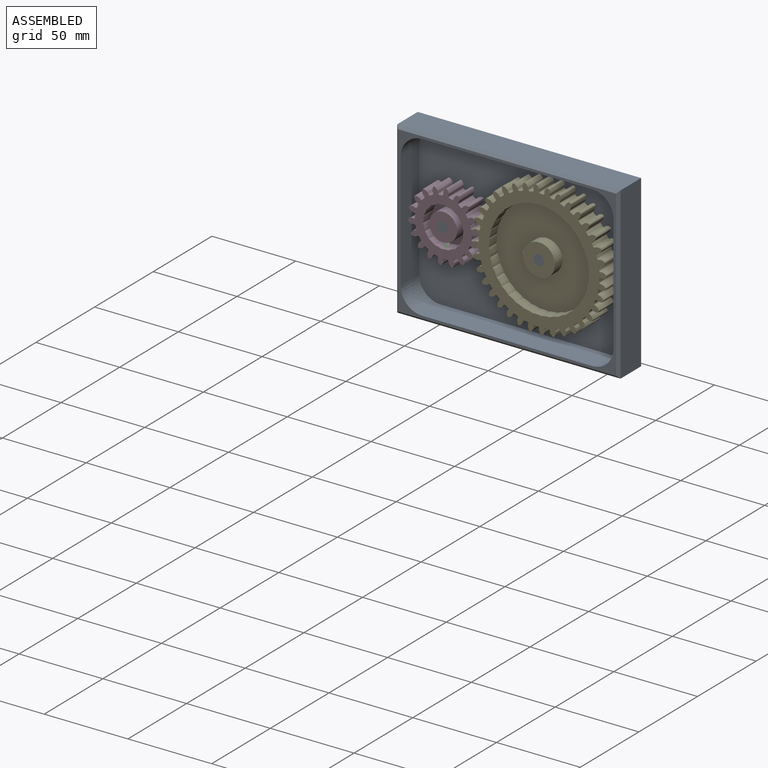
[diagram: assembled view]
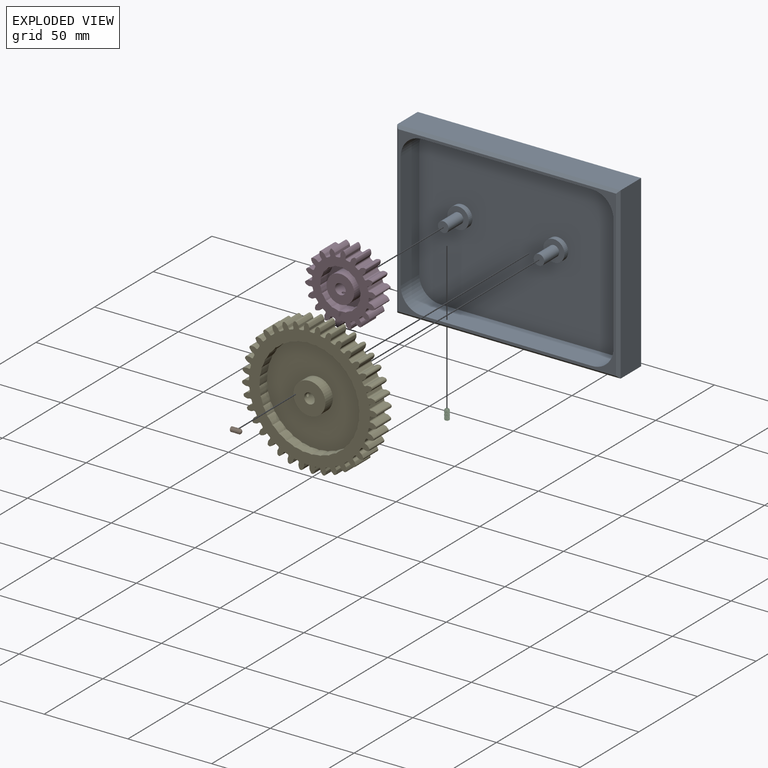
[diagram: exploded view]
GUIDED TOUR — MATED ASSEMBLY (Onshape document 814981c702ebb465fcfaa713, AutoMate assembly 814981c702ebb465fcfaa713_cfed30250e03f2a63d97d763_6ee8edd67da116ce3dcf96ac_default)

This assembly has 5 components, labeled P0..P4 below (a component is one placed occurrence of a part; the same part can appear more than once), held together by 4 mates. A mate is a constraint between two components; its type names the relative motion it leaves free:
  REVOLUTE — leaves rotation about the listed axis free (a hinge).
Axis/direction vectors are unit vectors and 'through' points are millimeter coordinates, both in the assembly's world frame.

MATES
  1. REVOLUTE "Revolute 2": P4 <-> P0, axis (0.000, 1.000, 0.000) through (176.28, -2.98, 43.19) mm
  2. REVOLUTE "Revolute 3": P2 <-> P3, axis (0.000, 0.000, -1.000) through (119.13, -12.50, 37.33) mm
  3. REVOLUTE "Revolute 1": P3 <-> P0, axis (0.000, 1.000, 0.000) through (119.13, -2.98, 45.61) mm
  4. REVOLUTE "Revolute 4": P1 <-> P4, axis (-1.000, 0.000, 0.000) through (170.04, -12.50, 43.19) mm

ASSEMBLY ORDER
  1. P0 — the base component [order heuristic]
  2. P3 — core [order heuristic]
  3. P4 — core [order heuristic]
  4. P2 — core [order heuristic]
  5. P1 [order verified]
(P1 verified with a relaxed clearance tolerance: the source model stores slight part interference there.)
Order-tag legend:
  [order verified] — this step's position reverses a verified removal order: the component was checked to insert without passing through the ones already placed.
  [order heuristic] — the first 4 components form the assembly's core: parts whose collision-free extraction could not be verified, listed in mate-graph order.

Of the 5 components, 3 carry the full construction recipe — the FeatureScript program that regenerates the part's solid from scratch; the rest are supplied as boundary geometry only.
Each toured component is shown spotlighted twice — in the assembled view, then in the exploded view, where a leader line traces a displaced component back to its assembled socket (saturated green if recipe-attached, orange if geometry-only; every other component desaturated gray) — followed by its recipe or geometry summary and the mates that hold it.
NOTE — this tour is split across 3 documents so each fits a 32k-token context. This is document 1: the component sections continue in the remaining 2 documents, each repeating the header above.
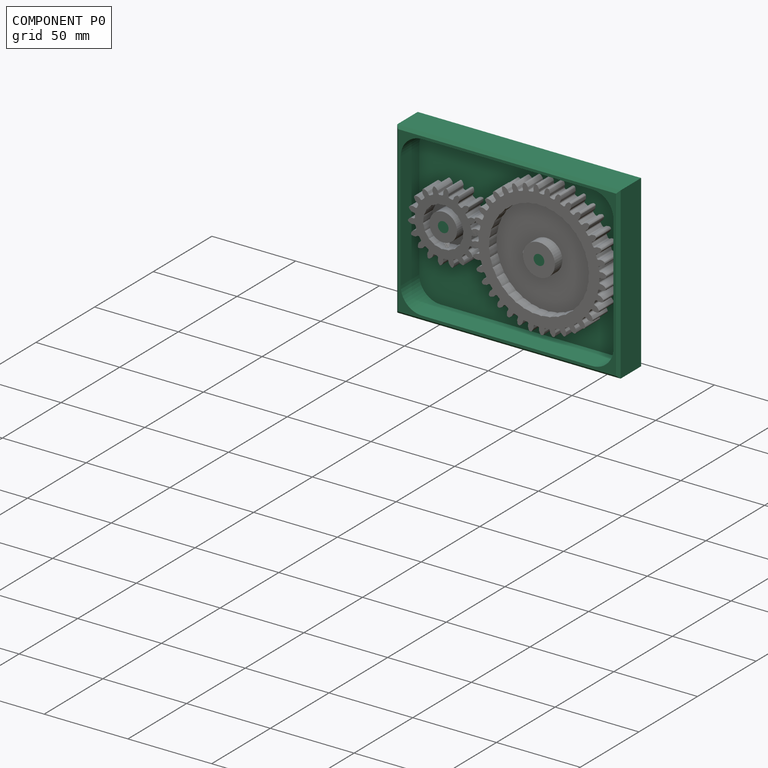
[diagram: component P0 — assembled]
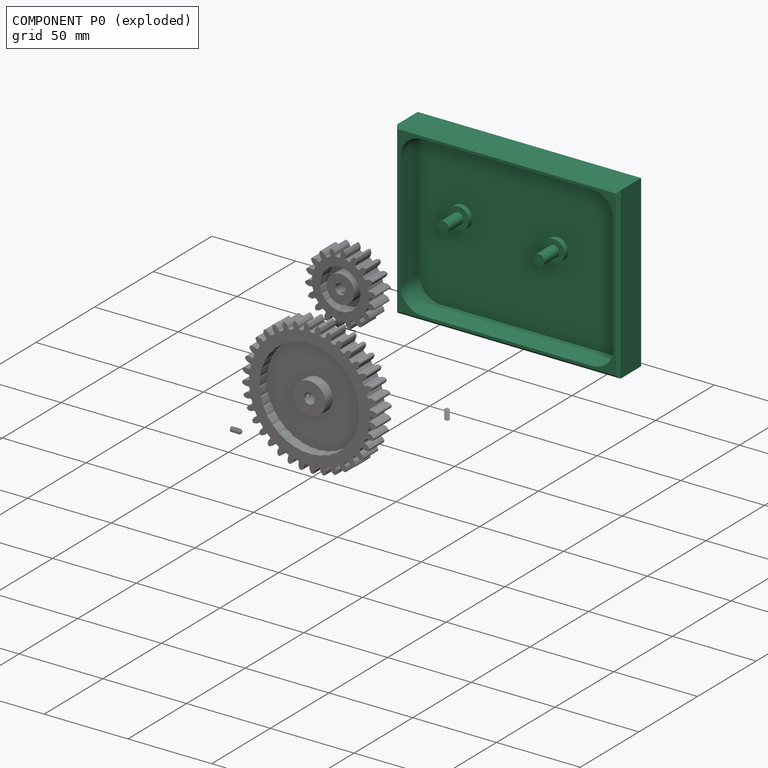
[diagram: component P0 — exploded]
COMPONENT P0 — recipe-attached (CADFS 00139969, mesh-verified: the recipe's output STEP matches this component's geometry to below the mesh-comparison resolution (tessellation chordal tolerance ~0.253 mm)).
Held by: REVOLUTE mate "Revolute 2" to P4; REVOLUTE mate "Revolute 1" to P3.
Construction recipe (FeatureScript — the CAD program that rebuilds this solid; sketch coordinates are in the units given by the * unit suffixes, e.g. mm):

FeatureScript 1511;
import(path : "onshape/std/geometry.fs", version : "1511.0");
import(path : "onshape/std/common.fs", version : "1511.0");
const mm = millimeter;
const VERTEX = EntityType.VERTEX;
const EDGE = EntityType.EDGE;
const FACE = EntityType.FACE;
const BODY = EntityType.BODY;
function v(x, y){return vector(x, y);}
function OD(order){return orderDisambiguation(order);}
function OSD(set){return originalSetDisambiguation(set);}
function TD(topology){return topologyDisambiguation(topology);}
function TDD(query){return trueDependencyDisambiguation(query);}
function sQuery(a, b, c) {return sketchEntityQuery(a, b, c);}

annotation { "Feature Type Name" : "Feature", "Feature Type Description" : "" }
export const myFeature = defineFeature(function(context is Context, id is Id, definition is map)
    precondition{}
    {
        {
            var Q0;
            Q0=qCreatedBy(makeId("Front.planeOp"),FACE);
            var sketch = newSketch(context, id + "F0", { "sketchPlane" : qUnion([Q0])});
            skLineSegment(sketch, "E0.bottom", {"start": v(0, 0) * mm, "end": v(133.35, 0) * mm});
            skLineSegment(sketch, "E0.top", {"start": v(0, 101.6) * mm, "end": v(133.35, 101.6) * mm});
            skLineSegment(sketch, "E0.left", {"start": v(0, 0) * mm, "end": v(0, 101.6) * mm});
            skLineSegment(sketch, "E0.right", {"start": v(133.35, 0) * mm, "end": v(133.35, 101.6) * mm});
            skSolve(sketch);
        }
        {
            var Q0;
            Q0 = qSketchRegion(id + "F0", true);
            extrude(context, id + "F1", {"entities" : qUnion([Q0]), "depth" : 19.05 * mm});
        }
        {
            var Q0;
            Q0=makeQuery(id+"F1.opExtrude","CAP_FACE",FACE,{"disambiguationData":[OSD([sQuery(id+"F0.wireOp",EDGE,"E0.bottom"),sQuery(id+"F0.wireOp",EDGE,"E0.top"),sQuery(id+"F0.wireOp",EDGE,"E0.left"),sQuery(id+"F0.wireOp",EDGE,"E0.right")])],"isStart":false});
            shell(context, id + "F2", {"entities" : qUnion([Q0]), "thickness" : 3.17 * mm});
        }
        {
            var Q0;
            Q0=makeQuery(id+"F2.opShell","OFFSET_FACE",FACE,{"disambiguationData":[OSD([sQuery(id+"F0.wireOp",EDGE,"E0.bottom"),sQuery(id+"F0.wireOp",EDGE,"E0.top"),sQuery(id+"F0.wireOp",EDGE,"E0.left"),sQuery(id+"F0.wireOp",EDGE,"E0.right")])]});
            var sketch = newSketch(context, id + "F3", { "sketchPlane" : qUnion([Q0])});
            skCircle(sketch, "E1", {"center": v(28.58, 54.35) * mm, "radius": 6.35 * mm});
            skCircle(sketch, "E2", {"center": v(85.73, 51.92) * mm, "radius": 6.35 * mm});
            skLineSegment(sketch, "E3", {"start": v(28.58, 54.35) * mm, "end": v(3.18, 54.35) * mm, "construction": true});
            skSolve(sketch);
        }
        {
            var Q0;
            Q0 = qSketchRegion(id + "F3", true);
            extrude(context, id + "F4", {"entities" : qUnion([Q0]), "operationType" : NewBodyOperationType.ADD, "depth" : 3.17 * mm});
        }
        {
            var Q0;
            Q0=makeQuery(id+"F2.opShell","OFFSET_FACE",FACE,{"disambiguationData":[OSD([sQuery(id+"F0.wireOp",EDGE,"E0.bottom"),sQuery(id+"F0.wireOp",EDGE,"E0.top"),sQuery(id+"F0.wireOp",EDGE,"E0.left"),sQuery(id+"F0.wireOp",EDGE,"E0.right")])]});
            var sketch = newSketch(context, id + "F5", { "sketchPlane" : qUnion([Q0])});
            skCircle(sketch, "E4", {"center": v(28.58, 54.35) * mm, "radius": 3.18 * mm});
            skCircle(sketch, "E5", {"center": v(85.73, 51.92) * mm, "radius": 3.18 * mm});
            skSolve(sketch);
        }
        {
            var Q0;
            Q0 = qSketchRegion(id + "F5", true);
            extrude(context, id + "F6", {"entities" : qUnion([Q0]), "operationType" : NewBodyOperationType.ADD, "depth" : 15.88 * mm});
        }
        {
            var Q0;
            Q0=makeQuery(id+"F2.opShell","OFFSET_EDGE",EDGE,{"disambiguationData":[OSD([sQuery(id+"F0.wireOp",EDGE,"E0.bottom"),sQuery(id+"F0.wireOp",EDGE,"E0.left")])]});
            var Q1;
            Q1=makeQuery(id+"F2.opShell","OFFSET_EDGE",EDGE,{"disambiguationData":[OSD([sQuery(id+"F0.wireOp",EDGE,"E0.top"),sQuery(id+"F0.wireOp",EDGE,"E0.left")])]});
            var Q2;
            Q2=makeQuery(id+"F2.opShell","OFFSET_EDGE",EDGE,{"disambiguationData":[OSD([sQuery(id+"F0.wireOp",EDGE,"E0.bottom"),sQuery(id+"F0.wireOp",EDGE,"E0.right")])]});
            var Q3;
            Q3=makeQuery(id+"F2.opShell","OFFSET_EDGE",EDGE,{"disambiguationData":[OSD([sQuery(id+"F0.wireOp",EDGE,"E0.top"),sQuery(id+"F0.wireOp",EDGE,"E0.right")])]});
            fillet(context, id + "F7", {"entities" : qUnion([Q0, Q1, Q2, Q3]), "radius" : 12.7 * mm, "tangentPropagation" : true, "allowEdgeOverflow" : false});
        }
        {
            var Q0;
            Q0=makeQuery(id+"F1.opExtrude","CAP_EDGE",EDGE,{"disambiguationData":[OSD([sQuery(id+"F0.wireOp",EDGE,"E0.right")])],"isStart":false});
            var Q1;
            Q1=makeQuery(id+"F1.opExtrude","CAP_EDGE",EDGE,{"disambiguationData":[OSD([sQuery(id+"F0.wireOp",EDGE,"E0.bottom")])],"isStart":false});
            var Q2;
            Q2=makeQuery(id+"F1.opExtrude","CAP_EDGE",EDGE,{"disambiguationData":[OSD([sQuery(id+"F0.wireOp",EDGE,"E0.left")])],"isStart":false});
            var Q3;
            Q3=makeQuery(id+"F1.opExtrude","CAP_EDGE",EDGE,{"disambiguationData":[OSD([sQuery(id+"F0.wireOp",EDGE,"E0.top")])],"isStart":false});
            chamfer(context, id + "F8", {"entities" : qUnion([Q0, Q1, Q2, Q3]), "width" : 1.6 * mm, "tangentPropagation" : true});
        }
    });
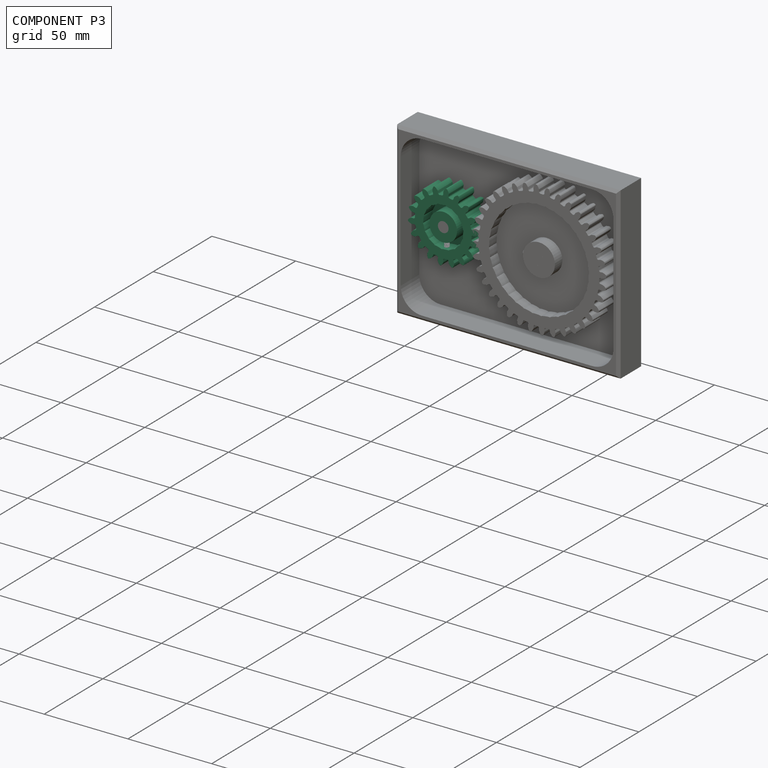
[diagram: component P3 — assembled]
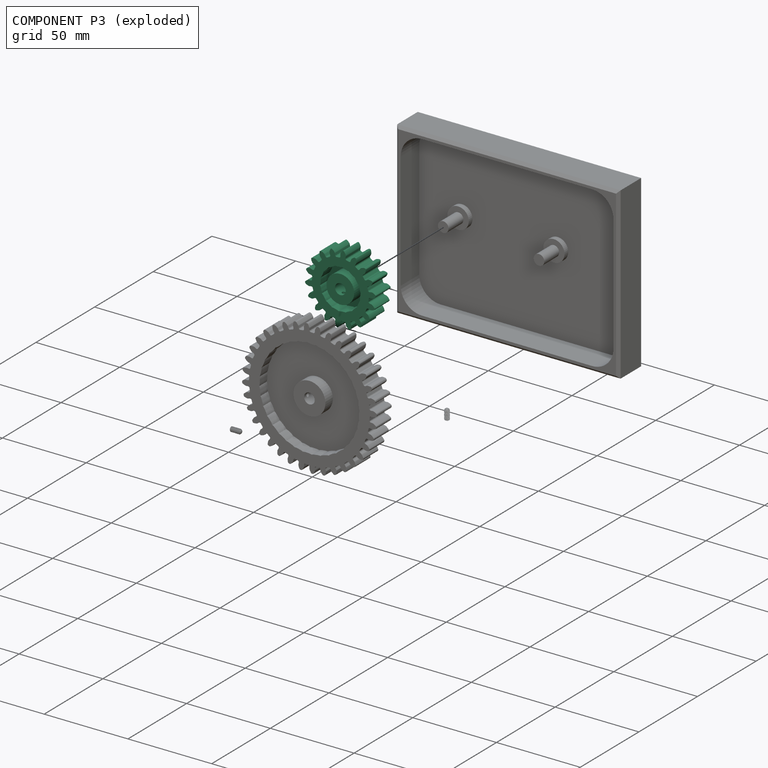
[diagram: component P3 — exploded]
COMPONENT P3 — recipe-attached (CADFS 00139970, mesh-verified: the recipe's output STEP matches this component's geometry to below the mesh-comparison resolution (tessellation chordal tolerance ~0.0915 mm)).
Held by: REVOLUTE mate "Revolute 3" to P2; REVOLUTE mate "Revolute 1" to P0.
Construction recipe (FeatureScript — the CAD program that rebuilds this solid; sketch coordinates are in the units given by the * unit suffixes, e.g. mm):

FeatureScript 1511;
import(path : "onshape/std/geometry.fs", version : "1511.0");
import(path : "onshape/std/common.fs", version : "1511.0");
const mm = millimeter;
const VERTEX = EntityType.VERTEX;
const EDGE = EntityType.EDGE;
const FACE = EntityType.FACE;
const BODY = EntityType.BODY;
function v(x, y){return vector(x, y);}
function OD(order){return orderDisambiguation(order);}
function OSD(set){return originalSetDisambiguation(set);}
function TD(topology){return topologyDisambiguation(topology);}
function TDD(query){return trueDependencyDisambiguation(query);}
function sQuery(a, b, c) {return sketchEntityQuery(a, b, c);}

annotation { "Feature Type Name" : "Feature", "Feature Type Description" : "" }
export const myFeature = defineFeature(function(context is Context, id is Id, definition is map)
    precondition{}
    {
        {
            var Q0;
            Q0=qCreatedBy(makeId("Front.planeOp"),FACE);
            var sketch = newSketch(context, id + "F0", { "sketchPlane" : qUnion([Q0])});
            skArc(sketch, "E0", {"start": v(-3.71, 16.52) * mm, "mid": v(-4.38, 16.35) * mm, "end": v(-5.04, 16.16) * mm});
            skArc(sketch, "E1.trimOffspring", {"start": v(-0.07, 19.21) * mm, "mid": v(-0.63, 20.19) * mm, "end": v(-1.4, 21) * mm});
            skLineSegment(sketch, "E2", {"start": v(-1.68, 21.09) * mm, "end": v(-1.84, 21.08) * mm});
            skLineSegment(sketch, "E3", {"start": v(0, 18.89) * mm, "end": v(0, 17.74) * mm});
            skLineSegment(sketch, "E4.MirrorCS", {"start": v(-2, 21.06) * mm, "end": v(-1.84, 21.08) * mm});
            skArc(sketch, "E5.MirrorCS", {"start": v(-3.27, 18.93) * mm, "mid": v(-2.89, 20) * mm, "end": v(-2.27, 20.93) * mm});
            skLineSegment(sketch, "E6.MirrorCS", {"start": v(-3.28, 18.6) * mm, "end": v(-3.08, 17.47) * mm});
            skPoint(sketch, "E7.visualSharp", {"position": v(0, 16.93) * mm});
            skArc(sketch, "E7.filletArc", {"start": v(0, 17.74) * mm, "mid": v(0.23, 17.17) * mm, "end": v(0.79, 16.91) * mm});
            skPoint(sketch, "E8.visualSharp", {"position": v(-2.94, 16.67) * mm});
            skArc(sketch, "E8.filletArc", {"start": v(-3.71, 16.52) * mm, "mid": v(-3.2, 16.86) * mm, "end": v(-3.08, 17.47) * mm});
            skPoint(sketch, "E9.visualSharp", {"position": v(-3.3, 18.76) * mm});
            skArc(sketch, "E9.filletArc", {"start": v(-3.27, 18.93) * mm, "mid": v(-3.3, 18.77) * mm, "end": v(-3.28, 18.6) * mm});
            skPoint(sketch, "E10.visualSharp", {"position": v(0, 19.05) * mm});
            skArc(sketch, "E10.filletArc", {"start": v(0, 18.89) * mm, "mid": v(-0.02, 19.05) * mm, "end": v(-0.07, 19.21) * mm});
            skPoint(sketch, "E11.visualSharp", {"position": v(-2.16, 21.05) * mm});
            skArc(sketch, "E11.filletArc", {"start": v(-2, 21.06) * mm, "mid": v(-2.15, 21.02) * mm, "end": v(-2.27, 20.93) * mm});
            skPoint(sketch, "E12.visualSharp", {"position": v(-1.53, 21.1) * mm});
            skArc(sketch, "E12.filletArc", {"start": v(-1.4, 21) * mm, "mid": v(-1.53, 21.07) * mm, "end": v(-1.68, 21.09) * mm});
            skArc(sketch, "E13.1.0", {"start": v(-9.14, 14.25) * mm, "mid": v(-8.78, 14.75) * mm, "end": v(-8.87, 15.36) * mm});
            skLineSegment(sketch, "E13.1.1", {"start": v(-9.44, 16.36) * mm, "end": v(-8.87, 15.36) * mm});
            skArc(sketch, "E13.1.2", {"start": v(-9.55, 16.67) * mm, "mid": v(-9.51, 16.51) * mm, "end": v(-9.44, 16.36) * mm});
            skArc(sketch, "E13.1.3", {"start": v(-9.55, 16.67) * mm, "mid": v(-9.55, 17.8) * mm, "end": v(-9.29, 18.89) * mm});
            skArc(sketch, "E13.1.4", {"start": v(-9.1, 19.1) * mm, "mid": v(-9.21, 19.02) * mm, "end": v(-9.29, 18.89) * mm});
            skLineSegment(sketch, "E13.1.5", {"start": v(-9.1, 19.1) * mm, "end": v(-8.94, 19.17) * mm});
            skLineSegment(sketch, "E13.1.6", {"start": v(-8.79, 19.24) * mm, "end": v(-8.94, 19.17) * mm});
            skArc(sketch, "E13.1.7", {"start": v(-8.5, 19.26) * mm, "mid": v(-8.65, 19.28) * mm, "end": v(-8.79, 19.24) * mm});
            skArc(sketch, "E13.1.8", {"start": v(-6.63, 18.03) * mm, "mid": v(-7.5, 18.76) * mm, "end": v(-8.5, 19.26) * mm});
            skArc(sketch, "E13.1.9", {"start": v(-6.46, 17.75) * mm, "mid": v(-6.53, 17.9) * mm, "end": v(-6.63, 18.03) * mm});
            skLineSegment(sketch, "E13.1.10", {"start": v(-6.46, 17.75) * mm, "end": v(-6.07, 16.67) * mm});
            skArc(sketch, "E13.1.11", {"start": v(-6.07, 16.67) * mm, "mid": v(-5.66, 16.2) * mm, "end": v(-5.04, 16.16) * mm});
            skArc(sketch, "E13.2.0", {"start": v(-13.46, 10.27) * mm, "mid": v(-13.3, 10.86) * mm, "end": v(-13.59, 11.4) * mm});
            skLineSegment(sketch, "E13.2.1", {"start": v(-14.47, 12.14) * mm, "end": v(-13.59, 11.4) * mm});
            skArc(sketch, "E13.2.2", {"start": v(-14.68, 12.4) * mm, "mid": v(-14.59, 12.26) * mm, "end": v(-14.47, 12.14) * mm});
            skArc(sketch, "E13.2.3", {"start": v(-14.68, 12.4) * mm, "mid": v(-15.06, 13.46) * mm, "end": v(-15.19, 14.57) * mm});
            skArc(sketch, "E13.2.4", {"start": v(-15.08, 14.84) * mm, "mid": v(-15.16, 14.72) * mm, "end": v(-15.19, 14.57) * mm});
            skLineSegment(sketch, "E13.2.5", {"start": v(-15.08, 14.84) * mm, "end": v(-14.96, 14.96) * mm});
            skLineSegment(sketch, "E13.2.6", {"start": v(-14.84, 15.08) * mm, "end": v(-14.96, 14.96) * mm});
            skArc(sketch, "E13.2.7", {"start": v(-14.57, 15.19) * mm, "mid": v(-14.72, 15.16) * mm, "end": v(-14.84, 15.08) * mm});
            skArc(sketch, "E13.2.8", {"start": v(-12.4, 14.68) * mm, "mid": v(-13.46, 15.06) * mm, "end": v(-14.57, 15.19) * mm});
            skArc(sketch, "E13.2.9", {"start": v(-12.14, 14.47) * mm, "mid": v(-12.26, 14.59) * mm, "end": v(-12.4, 14.68) * mm});
            skLineSegment(sketch, "E13.2.10", {"start": v(-12.14, 14.47) * mm, "end": v(-11.4, 13.59) * mm});
            skArc(sketch, "E13.2.11", {"start": v(-11.4, 13.59) * mm, "mid": v(-10.86, 13.3) * mm, "end": v(-10.27, 13.46) * mm});
            skArc(sketch, "E13.3.0", {"start": v(-16.16, 5.04) * mm, "mid": v(-16.2, 5.66) * mm, "end": v(-16.67, 6.07) * mm});
            skLineSegment(sketch, "E13.3.1", {"start": v(-17.75, 6.46) * mm, "end": v(-16.67, 6.07) * mm});
            skArc(sketch, "E13.3.2", {"start": v(-18.03, 6.63) * mm, "mid": v(-17.9, 6.53) * mm, "end": v(-17.75, 6.46) * mm});
            skArc(sketch, "E13.3.3", {"start": v(-18.03, 6.63) * mm, "mid": v(-18.76, 7.5) * mm, "end": v(-19.26, 8.5) * mm});
            skArc(sketch, "E13.3.4", {"start": v(-19.24, 8.79) * mm, "mid": v(-19.28, 8.65) * mm, "end": v(-19.26, 8.5) * mm});
            skLineSegment(sketch, "E13.3.5", {"start": v(-19.24, 8.79) * mm, "end": v(-19.17, 8.94) * mm});
            skLineSegment(sketch, "E13.3.6", {"start": v(-19.1, 9.1) * mm, "end": v(-19.17, 8.94) * mm});
            skArc(sketch, "E13.3.7", {"start": v(-18.89, 9.29) * mm, "mid": v(-19.02, 9.21) * mm, "end": v(-19.1, 9.1) * mm});
            skArc(sketch, "E13.3.8", {"start": v(-16.67, 9.55) * mm, "mid": v(-17.8, 9.55) * mm, "end": v(-18.89, 9.29) * mm});
            skArc(sketch, "E13.3.9", {"start": v(-16.36, 9.44) * mm, "mid": v(-16.51, 9.51) * mm, "end": v(-16.67, 9.55) * mm});
            skLineSegment(sketch, "E13.3.10", {"start": v(-16.36, 9.44) * mm, "end": v(-15.36, 8.87) * mm});
            skArc(sketch, "E13.3.11", {"start": v(-15.36, 8.87) * mm, "mid": v(-14.75, 8.78) * mm, "end": v(-14.25, 9.14) * mm});
            skArc(sketch, "E13.4.0", {"start": v(-16.91, -0.79) * mm, "mid": v(-17.17, -0.23) * mm, "end": v(-17.74, 0) * mm});
            skLineSegment(sketch, "E13.4.1", {"start": v(-18.89, 0) * mm, "end": v(-17.74, 0) * mm});
            skArc(sketch, "E13.4.2", {"start": v(-19.21, 0.07) * mm, "mid": v(-19.05, 0.02) * mm, "end": v(-18.89, 0) * mm});
            skArc(sketch, "E13.4.3", {"start": v(-19.21, 0.07) * mm, "mid": v(-20.19, 0.63) * mm, "end": v(-21, 1.4) * mm});
            skArc(sketch, "E13.4.4", {"start": v(-21.09, 1.68) * mm, "mid": v(-21.07, 1.53) * mm, "end": v(-21, 1.4) * mm});
            skLineSegment(sketch, "E13.4.5", {"start": v(-21.09, 1.68) * mm, "end": v(-21.08, 1.84) * mm});
            skLineSegment(sketch, "E13.4.6", {"start": v(-21.06, 2) * mm, "end": v(-21.08, 1.84) * mm});
            skArc(sketch, "E13.4.7", {"start": v(-20.93, 2.27) * mm, "mid": v(-21.02, 2.15) * mm, "end": v(-21.06, 2) * mm});
            skArc(sketch, "E13.4.8", {"start": v(-18.93, 3.27) * mm, "mid": v(-20, 2.89) * mm, "end": v(-20.93, 2.27) * mm});
            skArc(sketch, "E13.4.9", {"start": v(-18.6, 3.28) * mm, "mid": v(-18.77, 3.3) * mm, "end": v(-18.93, 3.27) * mm});
            skLineSegment(sketch, "E13.4.10", {"start": v(-18.6, 3.28) * mm, "end": v(-17.47, 3.08) * mm});
            skArc(sketch, "E13.4.11", {"start": v(-17.47, 3.08) * mm, "mid": v(-16.86, 3.2) * mm, "end": v(-16.52, 3.71) * mm});
            skArc(sketch, "E13.5.0", {"start": v(-15.62, -6.52) * mm, "mid": v(-16.05, -6.09) * mm, "end": v(-16.67, -6.07) * mm});
            skLineSegment(sketch, "E13.5.1", {"start": v(-17.75, -6.46) * mm, "end": v(-16.67, -6.07) * mm});
            skArc(sketch, "E13.5.2", {"start": v(-18.08, -6.5) * mm, "mid": v(-17.91, -6.5) * mm, "end": v(-17.75, -6.46) * mm});
            skArc(sketch, "E13.5.3", {"start": v(-18.08, -6.5) * mm, "mid": v(-19.19, -6.31) * mm, "end": v(-20.22, -5.87) * mm});
            skArc(sketch, "E13.5.4", {"start": v(-20.4, -5.64) * mm, "mid": v(-20.33, -5.77) * mm, "end": v(-20.22, -5.87) * mm});
            skLineSegment(sketch, "E13.5.5", {"start": v(-20.4, -5.64) * mm, "end": v(-20.43, -5.48) * mm});
            skLineSegment(sketch, "E13.5.6", {"start": v(-20.48, -5.31) * mm, "end": v(-20.43, -5.48) * mm});
            skArc(sketch, "E13.5.7", {"start": v(-20.44, -5.03) * mm, "mid": v(-20.49, -5.17) * mm, "end": v(-20.48, -5.31) * mm});
            skArc(sketch, "E13.5.8", {"start": v(-18.91, -3.4) * mm, "mid": v(-19.77, -4.12) * mm, "end": v(-20.44, -5.03) * mm});
            skArc(sketch, "E13.5.9", {"start": v(-18.6, -3.28) * mm, "mid": v(-18.76, -3.33) * mm, "end": v(-18.91, -3.4) * mm});
            skLineSegment(sketch, "E13.5.10", {"start": v(-18.6, -3.28) * mm, "end": v(-17.47, -3.08) * mm});
            skArc(sketch, "E13.5.11", {"start": v(-17.47, -3.08) * mm, "mid": v(-16.94, -2.76) * mm, "end": v(-16.8, -2.16) * mm});
            skArc(sketch, "E13.6.0", {"start": v(-12.45, -11.47) * mm, "mid": v(-13, -11.2) * mm, "end": v(-13.59, -11.4) * mm});
            skLineSegment(sketch, "E13.6.1", {"start": v(-14.47, -12.14) * mm, "end": v(-13.59, -11.4) * mm});
            skArc(sketch, "E13.6.2", {"start": v(-14.76, -12.3) * mm, "mid": v(-14.6, -12.24) * mm, "end": v(-14.47, -12.14) * mm});
            skArc(sketch, "E13.6.3", {"start": v(-14.76, -12.3) * mm, "mid": v(-15.87, -12.5) * mm, "end": v(-17, -12.43) * mm});
            skArc(sketch, "E13.6.4", {"start": v(-17.23, -12.27) * mm, "mid": v(-17.13, -12.37) * mm, "end": v(-17, -12.43) * mm});
            skLineSegment(sketch, "E13.6.5", {"start": v(-17.23, -12.27) * mm, "end": v(-17.33, -12.13) * mm});
            skLineSegment(sketch, "E13.6.6", {"start": v(-17.43, -12) * mm, "end": v(-17.33, -12.13) * mm});
            skArc(sketch, "E13.6.7", {"start": v(-17.49, -11.72) * mm, "mid": v(-17.49, -11.86) * mm, "end": v(-17.43, -12) * mm});
            skArc(sketch, "E13.6.8", {"start": v(-16.6, -9.66) * mm, "mid": v(-17.17, -10.64) * mm, "end": v(-17.49, -11.72) * mm});
            skArc(sketch, "E13.6.9", {"start": v(-16.36, -9.44) * mm, "mid": v(-16.5, -9.54) * mm, "end": v(-16.6, -9.66) * mm});
            skLineSegment(sketch, "E13.6.10", {"start": v(-16.36, -9.44) * mm, "end": v(-15.36, -8.87) * mm});
            skArc(sketch, "E13.6.11", {"start": v(-15.36, -8.87) * mm, "mid": v(-14.98, -8.38) * mm, "end": v(-15.04, -7.77) * mm});
            skArc(sketch, "E13.7.0", {"start": v(-7.77, -15.04) * mm, "mid": v(-8.38, -14.98) * mm, "end": v(-8.87, -15.36) * mm});
            skLineSegment(sketch, "E13.7.1", {"start": v(-9.44, -16.36) * mm, "end": v(-8.87, -15.36) * mm});
            skArc(sketch, "E13.7.2", {"start": v(-9.66, -16.6) * mm, "mid": v(-9.54, -16.5) * mm, "end": v(-9.44, -16.36) * mm});
            skArc(sketch, "E13.7.3", {"start": v(-9.66, -16.6) * mm, "mid": v(-10.64, -17.17) * mm, "end": v(-11.72, -17.49) * mm});
            skArc(sketch, "E13.7.4", {"start": v(-12, -17.43) * mm, "mid": v(-11.86, -17.49) * mm, "end": v(-11.72, -17.49) * mm});
            skLineSegment(sketch, "E13.7.5", {"start": v(-12, -17.43) * mm, "end": v(-12.13, -17.33) * mm});
            skLineSegment(sketch, "E13.7.6", {"start": v(-12.27, -17.23) * mm, "end": v(-12.13, -17.33) * mm});
            skArc(sketch, "E13.7.7", {"start": v(-12.43, -17) * mm, "mid": v(-12.37, -17.13) * mm, "end": v(-12.27, -17.23) * mm});
            skArc(sketch, "E13.7.8", {"start": v(-12.3, -14.76) * mm, "mid": v(-12.5, -15.87) * mm, "end": v(-12.43, -17) * mm});
            skArc(sketch, "E13.7.9", {"start": v(-12.14, -14.47) * mm, "mid": v(-12.24, -14.6) * mm, "end": v(-12.3, -14.76) * mm});
            skLineSegment(sketch, "E13.7.10", {"start": v(-12.14, -14.47) * mm, "end": v(-11.4, -13.59) * mm});
            skArc(sketch, "E13.7.11", {"start": v(-11.4, -13.59) * mm, "mid": v(-11.2, -13) * mm, "end": v(-11.47, -12.45) * mm});
            skArc(sketch, "E13.8.0", {"start": v(-2.16, -16.8) * mm, "mid": v(-2.76, -16.94) * mm, "end": v(-3.08, -17.47) * mm});
            skLineSegment(sketch, "E13.8.1", {"start": v(-3.28, -18.6) * mm, "end": v(-3.08, -17.47) * mm});
            skArc(sketch, "E13.8.2", {"start": v(-3.4, -18.91) * mm, "mid": v(-3.33, -18.76) * mm, "end": v(-3.28, -18.6) * mm});
            skArc(sketch, "E13.8.3", {"start": v(-3.4, -18.91) * mm, "mid": v(-4.12, -19.77) * mm, "end": v(-5.03, -20.44) * mm});
            skArc(sketch, "E13.8.4", {"start": v(-5.31, -20.48) * mm, "mid": v(-5.17, -20.49) * mm, "end": v(-5.03, -20.44) * mm});
            skLineSegment(sketch, "E13.8.5", {"start": v(-5.31, -20.48) * mm, "end": v(-5.48, -20.43) * mm});
            skLineSegment(sketch, "E13.8.6", {"start": v(-5.64, -20.4) * mm, "end": v(-5.48, -20.43) * mm});
            skArc(sketch, "E13.8.7", {"start": v(-5.87, -20.22) * mm, "mid": v(-5.77, -20.33) * mm, "end": v(-5.64, -20.4) * mm});
            skArc(sketch, "E13.8.8", {"start": v(-6.5, -18.08) * mm, "mid": v(-6.31, -19.19) * mm, "end": v(-5.87, -20.22) * mm});
            skArc(sketch, "E13.8.9", {"start": v(-6.46, -17.75) * mm, "mid": v(-6.5, -17.91) * mm, "end": v(-6.5, -18.08) * mm});
            skLineSegment(sketch, "E13.8.10", {"start": v(-6.46, -17.75) * mm, "end": v(-6.07, -16.67) * mm});
            skArc(sketch, "E13.8.11", {"start": v(-6.07, -16.67) * mm, "mid": v(-6.09, -16.05) * mm, "end": v(-6.52, -15.62) * mm});
            skArc(sketch, "E13.9.0", {"start": v(3.71, -16.52) * mm, "mid": v(3.2, -16.86) * mm, "end": v(3.08, -17.47) * mm});
            skLineSegment(sketch, "E13.9.1", {"start": v(3.28, -18.6) * mm, "end": v(3.08, -17.47) * mm});
            skArc(sketch, "E13.9.2", {"start": v(3.27, -18.93) * mm, "mid": v(3.3, -18.77) * mm, "end": v(3.28, -18.6) * mm});
            skArc(sketch, "E13.9.3", {"start": v(3.27, -18.93) * mm, "mid": v(2.89, -20) * mm, "end": v(2.27, -20.93) * mm});
            skArc(sketch, "E13.9.4", {"start": v(2, -21.06) * mm, "mid": v(2.15, -21.02) * mm, "end": v(2.27, -20.93) * mm});
            skLineSegment(sketch, "E13.9.5", {"start": v(2, -21.06) * mm, "end": v(1.84, -21.08) * mm});
            skLineSegment(sketch, "E13.9.6", {"start": v(1.68, -21.09) * mm, "end": v(1.84, -21.08) * mm});
            skArc(sketch, "E13.9.7", {"start": v(1.4, -21) * mm, "mid": v(1.53, -21.07) * mm, "end": v(1.68, -21.09) * mm});
            skArc(sketch, "E13.9.8", {"start": v(0.07, -19.21) * mm, "mid": v(0.63, -20.19) * mm, "end": v(1.4, -21) * mm});
            skArc(sketch, "E13.9.9", {"start": v(0, -18.89) * mm, "mid": v(0.02, -19.05) * mm, "end": v(0.07, -19.21) * mm});
            skLineSegment(sketch, "E13.9.10", {"start": v(0, -18.89) * mm, "end": v(0, -17.74) * mm});
            skArc(sketch, "E13.9.11", {"start": v(0, -17.74) * mm, "mid": v(-0.23, -17.17) * mm, "end": v(-0.79, -16.91) * mm});
            skArc(sketch, "E13.10.0", {"start": v(9.14, -14.25) * mm, "mid": v(8.78, -14.75) * mm, "end": v(8.87, -15.36) * mm});
            skLineSegment(sketch, "E13.10.1", {"start": v(9.44, -16.36) * mm, "end": v(8.87, -15.36) * mm});
            skArc(sketch, "E13.10.2", {"start": v(9.55, -16.67) * mm, "mid": v(9.51, -16.51) * mm, "end": v(9.44, -16.36) * mm});
            skArc(sketch, "E13.10.3", {"start": v(9.55, -16.67) * mm, "mid": v(9.55, -17.8) * mm, "end": v(9.29, -18.89) * mm});
            skArc(sketch, "E13.10.4", {"start": v(9.1, -19.1) * mm, "mid": v(9.21, -19.02) * mm, "end": v(9.29, -18.89) * mm});
            skLineSegment(sketch, "E13.10.5", {"start": v(9.1, -19.1) * mm, "end": v(8.94, -19.17) * mm});
            skLineSegment(sketch, "E13.10.6", {"start": v(8.79, -19.24) * mm, "end": v(8.94, -19.17) * mm});
            skArc(sketch, "E13.10.7", {"start": v(8.5, -19.26) * mm, "mid": v(8.65, -19.28) * mm, "end": v(8.79, -19.24) * mm});
            skArc(sketch, "E13.10.8", {"start": v(6.63, -18.03) * mm, "mid": v(7.5, -18.76) * mm, "end": v(8.5, -19.26) * mm});
            skArc(sketch, "E13.10.9", {"start": v(6.46, -17.75) * mm, "mid": v(6.53, -17.9) * mm, "end": v(6.63, -18.03) * mm});
            skLineSegment(sketch, "E13.10.10", {"start": v(6.46, -17.75) * mm, "end": v(6.07, -16.67) * mm});
            skArc(sketch, "E13.10.11", {"start": v(6.07, -16.67) * mm, "mid": v(5.66, -16.2) * mm, "end": v(5.04, -16.16) * mm});
            skArc(sketch, "E13.11.0", {"start": v(13.46, -10.27) * mm, "mid": v(13.3, -10.86) * mm, "end": v(13.59, -11.4) * mm});
            skLineSegment(sketch, "E13.11.1", {"start": v(14.47, -12.14) * mm, "end": v(13.59, -11.4) * mm});
            skArc(sketch, "E13.11.2", {"start": v(14.68, -12.4) * mm, "mid": v(14.59, -12.26) * mm, "end": v(14.47, -12.14) * mm});
            skArc(sketch, "E13.11.3", {"start": v(14.68, -12.4) * mm, "mid": v(15.06, -13.46) * mm, "end": v(15.19, -14.57) * mm});
            skArc(sketch, "E13.11.4", {"start": v(15.08, -14.84) * mm, "mid": v(15.16, -14.72) * mm, "end": v(15.19, -14.57) * mm});
            skLineSegment(sketch, "E13.11.5", {"start": v(15.08, -14.84) * mm, "end": v(14.96, -14.96) * mm});
            skLineSegment(sketch, "E13.11.6", {"start": v(14.84, -15.08) * mm, "end": v(14.96, -14.96) * mm});
            skArc(sketch, "E13.11.7", {"start": v(14.57, -15.19) * mm, "mid": v(14.72, -15.16) * mm, "end": v(14.84, -15.08) * mm});
            skArc(sketch, "E13.11.8", {"start": v(12.4, -14.68) * mm, "mid": v(13.46, -15.06) * mm, "end": v(14.57, -15.19) * mm});
            skArc(sketch, "E13.11.9", {"start": v(12.14, -14.47) * mm, "mid": v(12.26, -14.59) * mm, "end": v(12.4, -14.68) * mm});
            skLineSegment(sketch, "E13.11.10", {"start": v(12.14, -14.47) * mm, "end": v(11.4, -13.59) * mm});
            skArc(sketch, "E13.11.11", {"start": v(11.4, -13.59) * mm, "mid": v(10.86, -13.3) * mm, "end": v(10.27, -13.46) * mm});
            skArc(sketch, "E13.12.0", {"start": v(16.16, -5.04) * mm, "mid": v(16.2, -5.66) * mm, "end": v(16.67, -6.07) * mm});
            skLineSegment(sketch, "E13.12.1", {"start": v(17.75, -6.46) * mm, "end": v(16.67, -6.07) * mm});
            skArc(sketch, "E13.12.2", {"start": v(18.03, -6.63) * mm, "mid": v(17.9, -6.53) * mm, "end": v(17.75, -6.46) * mm});
            skArc(sketch, "E13.12.3", {"start": v(18.03, -6.63) * mm, "mid": v(18.76, -7.5) * mm, "end": v(19.26, -8.5) * mm});
            skArc(sketch, "E13.12.4", {"start": v(19.24, -8.79) * mm, "mid": v(19.28, -8.65) * mm, "end": v(19.26, -8.5) * mm});
            skLineSegment(sketch, "E13.12.5", {"start": v(19.24, -8.79) * mm, "end": v(19.17, -8.94) * mm});
            skLineSegment(sketch, "E13.12.6", {"start": v(19.1, -9.1) * mm, "end": v(19.17, -8.94) * mm});
            skArc(sketch, "E13.12.7", {"start": v(18.89, -9.29) * mm, "mid": v(19.02, -9.21) * mm, "end": v(19.1, -9.1) * mm});
            skArc(sketch, "E13.12.8", {"start": v(16.67, -9.55) * mm, "mid": v(17.8, -9.55) * mm, "end": v(18.89, -9.29) * mm});
            skArc(sketch, "E13.12.9", {"start": v(16.36, -9.44) * mm, "mid": v(16.51, -9.51) * mm, "end": v(16.67, -9.55) * mm});
            skLineSegment(sketch, "E13.12.10", {"start": v(16.36, -9.44) * mm, "end": v(15.36, -8.87) * mm});
            skArc(sketch, "E13.12.11", {"start": v(15.36, -8.87) * mm, "mid": v(14.75, -8.78) * mm, "end": v(14.25, -9.14) * mm});
            skArc(sketch, "E13.13.0", {"start": v(16.91, 0.79) * mm, "mid": v(17.17, 0.23) * mm, "end": v(17.74, 0) * mm});
            skLineSegment(sketch, "E13.13.1", {"start": v(18.89, 0) * mm, "end": v(17.74, 0) * mm});
            skArc(sketch, "E13.13.2", {"start": v(19.21, -0.07) * mm, "mid": v(19.05, -0.02) * mm, "end": v(18.89, 0) * mm});
            skArc(sketch, "E13.13.3", {"start": v(19.21, -0.07) * mm, "mid": v(20.19, -0.63) * mm, "end": v(21, -1.4) * mm});
            skArc(sketch, "E13.13.4", {"start": v(21.09, -1.68) * mm, "mid": v(21.07, -1.53) * mm, "end": v(21, -1.4) * mm});
            skLineSegment(sketch, "E13.13.5", {"start": v(21.09, -1.68) * mm, "end": v(21.08, -1.84) * mm});
            skLineSegment(sketch, "E13.13.6", {"start": v(21.06, -2) * mm, "end": v(21.08, -1.84) * mm});
            skArc(sketch, "E13.13.7", {"start": v(20.93, -2.27) * mm, "mid": v(21.02, -2.15) * mm, "end": v(21.06, -2) * mm});
            skArc(sketch, "E13.13.8", {"start": v(18.93, -3.27) * mm, "mid": v(20, -2.89) * mm, "end": v(20.93, -2.27) * mm});
            skArc(sketch, "E13.13.9", {"start": v(18.6, -3.28) * mm, "mid": v(18.77, -3.3) * mm, "end": v(18.93, -3.27) * mm});
            skLineSegment(sketch, "E13.13.10", {"start": v(18.6, -3.28) * mm, "end": v(17.47, -3.08) * mm});
            skArc(sketch, "E13.13.11", {"start": v(17.47, -3.08) * mm, "mid": v(16.86, -3.2) * mm, "end": v(16.52, -3.71) * mm});
            skArc(sketch, "E13.14.0", {"start": v(15.62, 6.52) * mm, "mid": v(16.05, 6.09) * mm, "end": v(16.67, 6.07) * mm});
            skLineSegment(sketch, "E13.14.1", {"start": v(17.75, 6.46) * mm, "end": v(16.67, 6.07) * mm});
            skArc(sketch, "E13.14.2", {"start": v(18.08, 6.5) * mm, "mid": v(17.91, 6.5) * mm, "end": v(17.75, 6.46) * mm});
            skArc(sketch, "E13.14.3", {"start": v(18.08, 6.5) * mm, "mid": v(19.19, 6.31) * mm, "end": v(20.22, 5.87) * mm});
            skArc(sketch, "E13.14.4", {"start": v(20.4, 5.64) * mm, "mid": v(20.33, 5.77) * mm, "end": v(20.22, 5.87) * mm});
            skLineSegment(sketch, "E13.14.5", {"start": v(20.4, 5.64) * mm, "end": v(20.43, 5.48) * mm});
            skLineSegment(sketch, "E13.14.6", {"start": v(20.48, 5.31) * mm, "end": v(20.43, 5.48) * mm});
            skArc(sketch, "E13.14.7", {"start": v(20.44, 5.03) * mm, "mid": v(20.49, 5.17) * mm, "end": v(20.48, 5.31) * mm});
            skArc(sketch, "E13.14.8", {"start": v(18.91, 3.4) * mm, "mid": v(19.77, 4.12) * mm, "end": v(20.44, 5.03) * mm});
            skArc(sketch, "E13.14.9", {"start": v(18.6, 3.28) * mm, "mid": v(18.76, 3.33) * mm, "end": v(18.91, 3.4) * mm});
            skLineSegment(sketch, "E13.14.10", {"start": v(18.6, 3.28) * mm, "end": v(17.47, 3.08) * mm});
            skArc(sketch, "E13.14.11", {"start": v(17.47, 3.08) * mm, "mid": v(16.94, 2.76) * mm, "end": v(16.8, 2.16) * mm});
            skArc(sketch, "E13.15.0", {"start": v(12.45, 11.47) * mm, "mid": v(13, 11.2) * mm, "end": v(13.59, 11.4) * mm});
            skLineSegment(sketch, "E13.15.1", {"start": v(14.47, 12.14) * mm, "end": v(13.59, 11.4) * mm});
            skArc(sketch, "E13.15.2", {"start": v(14.76, 12.3) * mm, "mid": v(14.6, 12.24) * mm, "end": v(14.47, 12.14) * mm});
            skArc(sketch, "E13.15.3", {"start": v(14.76, 12.3) * mm, "mid": v(15.87, 12.5) * mm, "end": v(17, 12.43) * mm});
            skArc(sketch, "E13.15.4", {"start": v(17.23, 12.27) * mm, "mid": v(17.13, 12.37) * mm, "end": v(17, 12.43) * mm});
            skLineSegment(sketch, "E13.15.5", {"start": v(17.23, 12.27) * mm, "end": v(17.33, 12.13) * mm});
            skLineSegment(sketch, "E13.15.6", {"start": v(17.43, 12) * mm, "end": v(17.33, 12.13) * mm});
            skArc(sketch, "E13.15.7", {"start": v(17.49, 11.72) * mm, "mid": v(17.49, 11.86) * mm, "end": v(17.43, 12) * mm});
            skArc(sketch, "E13.15.8", {"start": v(16.6, 9.66) * mm, "mid": v(17.17, 10.64) * mm, "end": v(17.49, 11.72) * mm});
            skArc(sketch, "E13.15.9", {"start": v(16.36, 9.44) * mm, "mid": v(16.5, 9.54) * mm, "end": v(16.6, 9.66) * mm});
            skLineSegment(sketch, "E13.15.10", {"start": v(16.36, 9.44) * mm, "end": v(15.36, 8.87) * mm});
            skArc(sketch, "E13.15.11", {"start": v(15.36, 8.87) * mm, "mid": v(14.98, 8.38) * mm, "end": v(15.04, 7.77) * mm});
            skArc(sketch, "E13.16.0", {"start": v(7.77, 15.04) * mm, "mid": v(8.38, 14.98) * mm, "end": v(8.87, 15.36) * mm});
            skLineSegment(sketch, "E13.16.1", {"start": v(9.44, 16.36) * mm, "end": v(8.87, 15.36) * mm});
            skArc(sketch, "E13.16.2", {"start": v(9.66, 16.6) * mm, "mid": v(9.54, 16.5) * mm, "end": v(9.44, 16.36) * mm});
            skArc(sketch, "E13.16.3", {"start": v(9.66, 16.6) * mm, "mid": v(10.64, 17.17) * mm, "end": v(11.72, 17.49) * mm});
            skArc(sketch, "E13.16.4", {"start": v(12, 17.43) * mm, "mid": v(11.86, 17.49) * mm, "end": v(11.72, 17.49) * mm});
            skLineSegment(sketch, "E13.16.5", {"start": v(12, 17.43) * mm, "end": v(12.13, 17.33) * mm});
            skLineSegment(sketch, "E13.16.6", {"start": v(12.27, 17.23) * mm, "end": v(12.13, 17.33) * mm});
            skArc(sketch, "E13.16.7", {"start": v(12.43, 17) * mm, "mid": v(12.37, 17.13) * mm, "end": v(12.27, 17.23) * mm});
            skArc(sketch, "E13.16.8", {"start": v(12.3, 14.76) * mm, "mid": v(12.5, 15.87) * mm, "end": v(12.43, 17) * mm});
            skArc(sketch, "E13.16.9", {"start": v(12.14, 14.47) * mm, "mid": v(12.24, 14.6) * mm, "end": v(12.3, 14.76) * mm});
            skLineSegment(sketch, "E13.16.10", {"start": v(12.14, 14.47) * mm, "end": v(11.4, 13.59) * mm});
            skArc(sketch, "E13.16.11", {"start": v(11.4, 13.59) * mm, "mid": v(11.2, 13) * mm, "end": v(11.47, 12.45) * mm});
            skArc(sketch, "E13.17.0", {"start": v(2.16, 16.8) * mm, "mid": v(2.76, 16.94) * mm, "end": v(3.08, 17.47) * mm});
            skLineSegment(sketch, "E13.17.1", {"start": v(3.28, 18.6) * mm, "end": v(3.08, 17.47) * mm});
            skArc(sketch, "E13.17.2", {"start": v(3.4, 18.91) * mm, "mid": v(3.33, 18.76) * mm, "end": v(3.28, 18.6) * mm});
            skArc(sketch, "E13.17.3", {"start": v(3.4, 18.91) * mm, "mid": v(4.12, 19.77) * mm, "end": v(5.03, 20.44) * mm});
            skArc(sketch, "E13.17.4", {"start": v(5.31, 20.48) * mm, "mid": v(5.17, 20.49) * mm, "end": v(5.03, 20.44) * mm});
            skLineSegment(sketch, "E13.17.5", {"start": v(5.31, 20.48) * mm, "end": v(5.48, 20.43) * mm});
            skLineSegment(sketch, "E13.17.6", {"start": v(5.64, 20.4) * mm, "end": v(5.48, 20.43) * mm});
            skArc(sketch, "E13.17.7", {"start": v(5.87, 20.22) * mm, "mid": v(5.77, 20.33) * mm, "end": v(5.64, 20.4) * mm});
            skArc(sketch, "E13.17.8", {"start": v(6.5, 18.08) * mm, "mid": v(6.31, 19.19) * mm, "end": v(5.87, 20.22) * mm});
            skArc(sketch, "E13.17.9", {"start": v(6.46, 17.75) * mm, "mid": v(6.5, 17.91) * mm, "end": v(6.5, 18.08) * mm});
            skLineSegment(sketch, "E13.17.10", {"start": v(6.46, 17.75) * mm, "end": v(6.07, 16.67) * mm});
            skArc(sketch, "E13.17.11", {"start": v(6.07, 16.67) * mm, "mid": v(6.09, 16.05) * mm, "end": v(6.52, 15.62) * mm});
            skArc(sketch, "E14.trimOffspring", {"start": v(-13.46, 10.27) * mm, "mid": v(-13.87, 9.71) * mm, "end": v(-14.25, 9.14) * mm});
            skArc(sketch, "E15.trimOffspring", {"start": v(-9.14, 14.25) * mm, "mid": v(-9.71, 13.87) * mm, "end": v(-10.27, 13.46) * mm});
            skArc(sketch, "E16.trimOffspring", {"start": v(-16.16, 5.04) * mm, "mid": v(-16.35, 4.38) * mm, "end": v(-16.52, 3.71) * mm});
            skArc(sketch, "E17.trimOffspring", {"start": v(-16.91, -0.79) * mm, "mid": v(-16.86, -1.48) * mm, "end": v(-16.8, -2.16) * mm});
            skArc(sketch, "E18.trimOffspring", {"start": v(2.16, 16.8) * mm, "mid": v(1.48, 16.86) * mm, "end": v(0.79, 16.91) * mm});
            skArc(sketch, "E19.trimOffspring", {"start": v(7.77, 15.04) * mm, "mid": v(7.15, 15.34) * mm, "end": v(6.52, 15.62) * mm});
            skArc(sketch, "E20.trimOffspring", {"start": v(12.45, 11.47) * mm, "mid": v(11.97, 11.97) * mm, "end": v(11.47, 12.45) * mm});
            skArc(sketch, "E21.trimOffspring", {"start": v(15.62, 6.52) * mm, "mid": v(15.34, 7.15) * mm, "end": v(15.04, 7.77) * mm});
            skArc(sketch, "E22.trimOffspring", {"start": v(-2.16, -16.8) * mm, "mid": v(-1.48, -16.86) * mm, "end": v(-0.79, -16.91) * mm});
            skArc(sketch, "E23.trimOffspring", {"start": v(-7.77, -15.04) * mm, "mid": v(-7.15, -15.34) * mm, "end": v(-6.52, -15.62) * mm});
            skArc(sketch, "E24.trimOffspring", {"start": v(-12.45, -11.47) * mm, "mid": v(-11.97, -11.97) * mm, "end": v(-11.47, -12.45) * mm});
            skArc(sketch, "E25.trimOffspring", {"start": v(-15.62, -6.52) * mm, "mid": v(-15.34, -7.15) * mm, "end": v(-15.04, -7.77) * mm});
            skArc(sketch, "E26.trimOffspring", {"start": v(3.71, -16.52) * mm, "mid": v(4.38, -16.35) * mm, "end": v(5.04, -16.16) * mm});
            skArc(sketch, "E27.trimOffspring", {"start": v(9.14, -14.25) * mm, "mid": v(9.71, -13.87) * mm, "end": v(10.27, -13.46) * mm});
            skArc(sketch, "E28.trimOffspring", {"start": v(13.46, -10.27) * mm, "mid": v(13.87, -9.71) * mm, "end": v(14.25, -9.14) * mm});
            skArc(sketch, "E29.trimOffspring", {"start": v(16.16, -5.04) * mm, "mid": v(16.35, -4.38) * mm, "end": v(16.52, -3.71) * mm});
            skArc(sketch, "E30.trimOffspring", {"start": v(16.91, 0.79) * mm, "mid": v(16.86, 1.48) * mm, "end": v(16.8, 2.16) * mm});
            skSolve(sketch);
        }
        {
            var Q0;
            Q0 = qSketchRegion(id + "F0", true);
            extrude(context, id + "F1", {"entities" : qUnion([Q0]), "depth" : 12.7 * mm});
        }
        {
            var Q0;
            Q0=makeQuery(id+"F1.opExtrude","CAP_FACE",FACE,{"disambiguationData":[OSD([sQuery(id+"F0.wireOp",EDGE,"E0"),sQuery(id+"F0.wireOp",EDGE,"E1.trimOffspring"),sQuery(id+"F0.wireOp",EDGE,"E2"),sQuery(id+"F0.wireOp",EDGE,"E3"),sQuery(id+"F0.wireOp",EDGE,"E4.MirrorCS"),sQuery(id+"F0.wireOp",EDGE,"E5.MirrorCS"),sQuery(id+"F0.wireOp",EDGE,"E6.MirrorCS"),sQuery(id+"F0.wireOp",EDGE,"E7.filletArc"),sQuery(id+"F0.wireOp",EDGE,"E8.filletArc"),sQuery(id+"F0.wireOp",EDGE,"E9.filletArc"),sQuery(id+"F0.wireOp",EDGE,"E10.filletArc"),sQuery(id+"F0.wireOp",EDGE,"E11.filletArc"),sQuery(id+"F0.wireOp",EDGE,"E12.filletArc"),sQuery(id+"F0.wireOp",EDGE,"E13.1.0"),sQuery(id+"F0.wireOp",EDGE,"E13.1.1"),sQuery(id+"F0.wireOp",EDGE,"E13.1.2"),sQuery(id+"F0.wireOp",EDGE,"E13.1.3"),sQuery(id+"F0.wireOp",EDGE,"E13.1.4"),sQuery(id+"F0.wireOp",EDGE,"E13.1.5"),sQuery(id+"F0.wireOp",EDGE,"E13.1.6"),sQuery(id+"F0.wireOp",EDGE,"E13.1.7"),sQuery(id+"F0.wireOp",EDGE,"E13.1.8"),sQuery(id+"F0.wireOp",EDGE,"E13.1.9"),sQuery(id+"F0.wireOp",EDGE,"E13.1.10"),sQuery(id+"F0.wireOp",EDGE,"E13.1.11"),sQuery(id+"F0.wireOp",EDGE,"E13.2.0"),sQuery(id+"F0.wireOp",EDGE,"E13.2.1"),sQuery(id+"F0.wireOp",EDGE,"E13.2.2"),sQuery(id+"F0.wireOp",EDGE,"E13.2.3"),sQuery(id+"F0.wireOp",EDGE,"E13.2.4"),sQuery(id+"F0.wireOp",EDGE,"E13.2.5"),sQuery(id+"F0.wireOp",EDGE,"E13.2.6"),sQuery(id+"F0.wireOp",EDGE,"E13.2.7"),sQuery(id+"F0.wireOp",EDGE,"E13.2.8"),sQuery(id+"F0.wireOp",EDGE,"E13.2.9"),sQuery(id+"F0.wireOp",EDGE,"E13.2.10"),sQuery(id+"F0.wireOp",EDGE,"E13.2.11"),sQuery(id+"F0.wireOp",EDGE,"E13.3.0"),sQuery(id+"F0.wireOp",EDGE,"E13.3.1"),sQuery(id+"F0.wireOp",EDGE,"E13.3.2"),sQuery(id+"F0.wireOp",EDGE,"E13.3.3"),sQuery(id+"F0.wireOp",EDGE,"E13.3.4"),sQuery(id+"F0.wireOp",EDGE,"E13.3.5"),sQuery(id+"F0.wireOp",EDGE,"E13.3.6"),sQuery(id+"F0.wireOp",EDGE,"E13.3.7"),sQuery(id+"F0.wireOp",EDGE,"E13.3.8"),sQuery(id+"F0.wireOp",EDGE,"E13.3.9"),sQuery(id+"F0.wireOp",EDGE,"E13.3.10"),sQuery(id+"F0.wireOp",EDGE,"E13.3.11"),sQuery(id+"F0.wireOp",EDGE,"E13.4.0"),sQuery(id+"F0.wireOp",EDGE,"E13.4.1"),sQuery(id+"F0.wireOp",EDGE,"E13.4.2"),sQuery(id+"F0.wireOp",EDGE,"E13.4.3"),sQuery(id+"F0.wireOp",EDGE,"E13.4.4"),sQuery(id+"F0.wireOp",EDGE,"E13.4.5"),sQuery(id+"F0.wireOp",EDGE,"E13.4.6"),sQuery(id+"F0.wireOp",EDGE,"E13.4.7"),sQuery(id+"F0.wireOp",EDGE,"E13.4.8"),sQuery(id+"F0.wireOp",EDGE,"E13.4.9"),sQuery(id+"F0.wireOp",EDGE,"E13.4.10"),sQuery(id+"F0.wireOp",EDGE,"E13.4.11"),sQuery(id+"F0.wireOp",EDGE,"E13.5.0"),sQuery(id+"F0.wireOp",EDGE,"E13.5.1"),sQuery(id+"F0.wireOp",EDGE,"E13.5.2"),sQuery(id+"F0.wireOp",EDGE,"E13.5.3"),sQuery(id+"F0.wireOp",EDGE,"E13.5.4"),sQuery(id+"F0.wireOp",EDGE,"E13.5.5"),sQuery(id+"F0.wireOp",EDGE,"E13.5.6"),sQuery(id+"F0.wireOp",EDGE,"E13.5.7"),sQuery(id+"F0.wireOp",EDGE,"E13.5.8"),sQuery(id+"F0.wireOp",EDGE,"E13.5.9"),sQuery(id+"F0.wireOp",EDGE,"E13.5.10"),sQuery(id+"F0.wireOp",EDGE,"E13.5.11"),sQuery(id+"F0.wireOp",EDGE,"E13.6.0"),sQuery(id+"F0.wireOp",EDGE,"E13.6.1"),sQuery(id+"F0.wireOp",EDGE,"E13.6.2"),sQuery(id+"F0.wireOp",EDGE,"E13.6.3"),sQuery(id+"F0.wireOp",EDGE,"E13.6.4"),sQuery(id+"F0.wireOp",EDGE,"E13.6.5"),sQuery(id+"F0.wireOp",EDGE,"E13.6.6"),sQuery(id+"F0.wireOp",EDGE,"E13.6.7"),sQuery(id+"F0.wireOp",EDGE,"E13.6.8"),sQuery(id+"F0.wireOp",EDGE,"E13.6.9"),sQuery(id+"F0.wireOp",EDGE,"E13.6.10"),sQuery(id+"F0.wireOp",EDGE,"E13.6.11"),sQuery(id+"F0.wireOp",EDGE,"E13.7.0"),sQuery(id+"F0.wireOp",EDGE,"E13.7.1"),sQuery(id+"F0.wireOp",EDGE,"E13.7.2"),sQuery(id+"F0.wireOp",EDGE,"E13.7.3"),sQuery(id+"F0.wireOp",EDGE,"E13.7.4"),sQuery(id+"F0.wireOp",EDGE,"E13.7.5"),sQuery(id+"F0.wireOp",EDGE,"E13.7.6"),sQuery(id+"F0.wireOp",EDGE,"E13.7.7"),sQuery(id+"F0.wireOp",EDGE,"E13.7.8"),sQuery(id+"F0.wireOp",EDGE,"E13.7.9"),sQuery(id+"F0.wireOp",EDGE,"E13.7.10"),sQuery(id+"F0.wireOp",EDGE,"E13.7.11"),sQuery(id+"F0.wireOp",EDGE,"E13.8.0"),sQuery(id+"F0.wireOp",EDGE,"E13.8.1"),sQuery(id+"F0.wireOp",EDGE,"E13.8.2"),sQuery(id+"F0.wireOp",EDGE,"E13.8.3"),sQuery(id+"F0.wireOp",EDGE,"E13.8.4"),sQuery(id+"F0.wireOp",EDGE,"E13.8.5"),sQuery(id+"F0.wireOp",EDGE,"E13.8.6"),sQuery(id+"F0.wireOp",EDGE,"E13.8.7"),sQuery(id+"F0.wireOp",EDGE,"E13.8.8"),sQuery(id+"F0.wireOp",EDGE,"E13.8.9"),sQuery(id+"F0.wireOp",EDGE,"E13.8.10"),sQuery(id+"F0.wireOp",EDGE,"E13.8.11"),sQuery(id+"F0.wireOp",EDGE,"E13.9.0"),sQuery(id+"F0.wireOp",EDGE,"E13.9.1"),sQuery(id+"F0.wireOp",EDGE,"E13.9.2"),sQuery(id+"F0.wireOp",EDGE,"E13.9.3"),sQuery(id+"F0.wireOp",EDGE,"E13.9.4"),sQuery(id+"F0.wireOp",EDGE,"E13.9.5"),sQuery(id+"F0.wireOp",EDGE,"E13.9.6"),sQuery(id+"F0.wireOp",EDGE,"E13.9.7"),sQuery(id+"F0.wireOp",EDGE,"E13.9.8"),sQuery(id+"F0.wireOp",EDGE,"E13.9.9"),sQuery(id+"F0.wireOp",EDGE,"E13.9.10"),sQuery(id+"F0.wireOp",EDGE,"E13.9.11"),sQuery(id+"F0.wireOp",EDGE,"E13.10.0"),sQuery(id+"F0.wireOp",EDGE,"E13.10.1"),sQuery(id+"F0.wireOp",EDGE,"E13.10.2"),sQuery(id+"F0.wireOp",EDGE,"E13.10.3"),sQuery(id+"F0.wireOp",EDGE,"E13.10.4"),sQuery(id+"F0.wireOp",EDGE,"E13.10.5"),sQuery(id+"F0.wireOp",EDGE,"E13.10.6"),sQuery(id+"F0.wireOp",EDGE,"E13.10.7"),sQuery(id+"F0.wireOp",EDGE,"E13.10.8"),sQuery(id+"F0.wireOp",EDGE,"E13.10.9"),sQuery(id+"F0.wireOp",EDGE,"E13.10.10"),sQuery(id+"F0.wireOp",EDGE,"E13.10.11"),sQuery(id+"F0.wireOp",EDGE,"E13.11.0"),sQuery(id+"F0.wireOp",EDGE,"E13.11.1"),sQuery(id+"F0.wireOp",EDGE,"E13.11.2"),sQuery(id+"F0.wireOp",EDGE,"E13.11.3"),sQuery(id+"F0.wireOp",EDGE,"E13.11.4"),sQuery(id+"F0.wireOp",EDGE,"E13.11.5"),sQuery(id+"F0.wireOp",EDGE,"E13.11.6"),sQuery(id+"F0.wireOp",EDGE,"E13.11.7"),sQuery(id+"F0.wireOp",EDGE,"E13.11.8"),sQuery(id+"F0.wireOp",EDGE,"E13.11.9"),sQuery(id+"F0.wireOp",EDGE,"E13.11.10"),sQuery(id+"F0.wireOp",EDGE,"E13.11.11"),sQuery(id+"F0.wireOp",EDGE,"E13.12.0"),sQuery(id+"F0.wireOp",EDGE,"E13.12.1"),sQuery(id+"F0.wireOp",EDGE,"E13.12.2"),sQuery(id+"F0.wireOp",EDGE,"E13.12.3"),sQuery(id+"F0.wireOp",EDGE,"E13.12.4"),sQuery(id+"F0.wireOp",EDGE,"E13.12.5"),sQuery(id+"F0.wireOp",EDGE,"E13.12.6"),sQuery(id+"F0.wireOp",EDGE,"E13.12.7"),sQuery(id+"F0.wireOp",EDGE,"E13.12.8"),sQuery(id+"F0.wireOp",EDGE,"E13.12.9"),sQuery(id+"F0.wireOp",EDGE,"E13.12.10"),sQuery(id+"F0.wireOp",EDGE,"E13.12.11"),sQuery(id+"F0.wireOp",EDGE,"E13.13.0"),sQuery(id+"F0.wireOp",EDGE,"E13.13.1"),sQuery(id+"F0.wireOp",EDGE,"E13.13.2"),sQuery(id+"F0.wireOp",EDGE,"E13.13.3"),sQuery(id+"F0.wireOp",EDGE,"E13.13.4"),sQuery(id+"F0.wireOp",EDGE,"E13.13.5"),sQuery(id+"F0.wireOp",EDGE,"E13.13.6"),sQuery(id+"F0.wireOp",EDGE,"E13.13.7"),sQuery(id+"F0.wireOp",EDGE,"E13.13.8"),sQuery(id+"F0.wireOp",EDGE,"E13.13.9"),sQuery(id+"F0.wireOp",EDGE,"E13.13.10"),sQuery(id+"F0.wireOp",EDGE,"E13.13.11"),sQuery(id+"F0.wireOp",EDGE,"E13.14.0"),sQuery(id+"F0.wireOp",EDGE,"E13.14.1"),sQuery(id+"F0.wireOp",EDGE,"E13.14.2"),sQuery(id+"F0.wireOp",EDGE,"E13.14.3"),sQuery(id+"F0.wireOp",EDGE,"E13.14.4"),sQuery(id+"F0.wireOp",EDGE,"E13.14.5"),sQuery(id+"F0.wireOp",EDGE,"E13.14.6"),sQuery(id+"F0.wireOp",EDGE,"E13.14.7"),sQuery(id+"F0.wireOp",EDGE,"E13.14.8"),sQuery(id+"F0.wireOp",EDGE,"E13.14.9"),sQuery(id+"F0.wireOp",EDGE,"E13.14.10"),sQuery(id+"F0.wireOp",EDGE,"E13.14.11"),sQuery(id+"F0.wireOp",EDGE,"E13.15.0"),sQuery(id+"F0.wireOp",EDGE,"E13.15.1"),sQuery(id+"F0.wireOp",EDGE,"E13.15.2"),sQuery(id+"F0.wireOp",EDGE,"E13.15.3"),sQuery(id+"F0.wireOp",EDGE,"E13.15.4"),sQuery(id+"F0.wireOp",EDGE,"E13.15.5"),sQuery(id+"F0.wireOp",EDGE,"E13.15.6"),sQuery(id+"F0.wireOp",EDGE,"E13.15.7"),sQuery(id+"F0.wireOp",EDGE,"E13.15.8"),sQuery(id+"F0.wireOp",EDGE,"E13.15.9"),sQuery(id+"F0.wireOp",EDGE,"E13.15.10"),sQuery(id+"F0.wireOp",EDGE,"E13.15.11"),sQuery(id+"F0.wireOp",EDGE,"E13.16.0"),sQuery(id+"F0.wireOp",EDGE,"E13.16.1"),sQuery(id+"F0.wireOp",EDGE,"E13.16.2"),sQuery(id+"F0.wireOp",EDGE,"E13.16.3"),sQuery(id+"F0.wireOp",EDGE,"E13.16.4"),sQuery(id+"F0.wireOp",EDGE,"E13.16.5"),sQuery(id+"F0.wireOp",EDGE,"E13.16.6"),sQuery(id+"F0.wireOp",EDGE,"E13.16.7"),sQuery(id+"F0.wireOp",EDGE,"E13.16.8"),sQuery(id+"F0.wireOp",EDGE,"E13.16.9"),sQuery(id+"F0.wireOp",EDGE,"E13.16.10"),sQuery(id+"F0.wireOp",EDGE,"E13.16.11"),sQuery(id+"F0.wireOp",EDGE,"E13.17.0"),sQuery(id+"F0.wireOp",EDGE,"E13.17.1"),sQuery(id+"F0.wireOp",EDGE,"E13.17.2"),sQuery(id+"F0.wireOp",EDGE,"E13.17.3"),sQuery(id+"F0.wireOp",EDGE,"E13.17.4"),sQuery(id+"F0.wireOp",EDGE,"E13.17.5"),sQuery(id+"F0.wireOp",EDGE,"E13.17.6"),sQuery(id+"F0.wireOp",EDGE,"E13.17.7"),sQuery(id+"F0.wireOp",EDGE,"E13.17.8"),sQuery(id+"F0.wireOp",EDGE,"E13.17.9"),sQuery(id+"F0.wireOp",EDGE,"E13.17.10"),sQuery(id+"F0.wireOp",EDGE,"E13.17.11"),sQuery(id+"F0.wireOp",EDGE,"E14.trimOffspring"),sQuery(id+"F0.wireOp",EDGE,"E15.trimOffspring"),sQuery(id+"F0.wireOp",EDGE,"E16.trimOffspring"),sQuery(id+"F0.wireOp",EDGE,"E17.trimOffspring"),sQuery(id+"F0.wireOp",EDGE,"E18.trimOffspring"),sQuery(id+"F0.wireOp",EDGE,"E19.trimOffspring"),sQuery(id+"F0.wireOp",EDGE,"E20.trimOffspring"),sQuery(id+"F0.wireOp",EDGE,"E21.trimOffspring"),sQuery(id+"F0.wireOp",EDGE,"E22.trimOffspring"),sQuery(id+"F0.wireOp",EDGE,"E23.trimOffspring"),sQuery(id+"F0.wireOp",EDGE,"E24.trimOffspring"),sQuery(id+"F0.wireOp",EDGE,"E25.trimOffspring"),sQuery(id+"F0.wireOp",EDGE,"E26.trimOffspring"),sQuery(id+"F0.wireOp",EDGE,"E27.trimOffspring"),sQuery(id+"F0.wireOp",EDGE,"E28.trimOffspring"),sQuery(id+"F0.wireOp",EDGE,"E29.trimOffspring"),sQuery(id+"F0.wireOp",EDGE,"E30.trimOffspring")])],"isStart":false});
            var sketch = newSketch(context, id + "F2", { "sketchPlane" : qUnion([Q0])});
            skCircle(sketch, "E31", {"center": v(0, 0) * mm, "radius": 3.18 * mm});
            skSolve(sketch);
        }
        {
            var Q0;
            Q0 = qSketchRegion(id + "F2", true);
            extrude(context, id + "F3", {"entities" : qUnion([Q0]), "operationType" : NewBodyOperationType.REMOVE, "oppositeDirection" : true, "depth" : 25.4 * mm});
        }
        {
            var Q0;
            Q0=makeQuery(id+"F1.opExtrude","CAP_FACE",FACE,{"disambiguationData":[OSD([sQuery(id+"F0.wireOp",EDGE,"E0"),sQuery(id+"F0.wireOp",EDGE,"E1.trimOffspring"),sQuery(id+"F0.wireOp",EDGE,"E2"),sQuery(id+"F0.wireOp",EDGE,"E3"),sQuery(id+"F0.wireOp",EDGE,"E4.MirrorCS"),sQuery(id+"F0.wireOp",EDGE,"E5.MirrorCS"),sQuery(id+"F0.wireOp",EDGE,"E6.MirrorCS"),sQuery(id+"F0.wireOp",EDGE,"E7.filletArc"),sQuery(id+"F0.wireOp",EDGE,"E8.filletArc"),sQuery(id+"F0.wireOp",EDGE,"E9.filletArc"),sQuery(id+"F0.wireOp",EDGE,"E10.filletArc"),sQuery(id+"F0.wireOp",EDGE,"E11.filletArc"),sQuery(id+"F0.wireOp",EDGE,"E12.filletArc"),sQuery(id+"F0.wireOp",EDGE,"E13.1.0"),sQuery(id+"F0.wireOp",EDGE,"E13.1.1"),sQuery(id+"F0.wireOp",EDGE,"E13.1.2"),sQuery(id+"F0.wireOp",EDGE,"E13.1.3"),sQuery(id+"F0.wireOp",EDGE,"E13.1.4"),sQuery(id+"F0.wireOp",EDGE,"E13.1.5"),sQuery(id+"F0.wireOp",EDGE,"E13.1.6"),sQuery(id+"F0.wireOp",EDGE,"E13.1.7"),sQuery(id+"F0.wireOp",EDGE,"E13.1.8"),sQuery(id+"F0.wireOp",EDGE,"E13.1.9"),sQuery(id+"F0.wireOp",EDGE,"E13.1.10"),sQuery(id+"F0.wireOp",EDGE,"E13.1.11"),sQuery(id+"F0.wireOp",EDGE,"E13.2.0"),sQuery(id+"F0.wireOp",EDGE,"E13.2.1"),sQuery(id+"F0.wireOp",EDGE,"E13.2.2"),sQuery(id+"F0.wireOp",EDGE,"E13.2.3"),sQuery(id+"F0.wireOp",EDGE,"E13.2.4"),sQuery(id+"F0.wireOp",EDGE,"E13.2.5"),sQuery(id+"F0.wireOp",EDGE,"E13.2.6"),sQuery(id+"F0.wireOp",EDGE,"E13.2.7"),sQuery(id+"F0.wireOp",EDGE,"E13.2.8"),sQuery(id+"F0.wireOp",EDGE,"E13.2.9"),sQuery(id+"F0.wireOp",EDGE,"E13.2.10"),sQuery(id+"F0.wireOp",EDGE,"E13.2.11"),sQuery(id+"F0.wireOp",EDGE,"E13.3.0"),sQuery(id+"F0.wireOp",EDGE,"E13.3.1"),sQuery(id+"F0.wireOp",EDGE,"E13.3.2"),sQuery(id+"F0.wireOp",EDGE,"E13.3.3"),sQuery(id+"F0.wireOp",EDGE,"E13.3.4"),sQuery(id+"F0.wireOp",EDGE,"E13.3.5"),sQuery(id+"F0.wireOp",EDGE,"E13.3.6"),sQuery(id+"F0.wireOp",EDGE,"E13.3.7"),sQuery(id+"F0.wireOp",EDGE,"E13.3.8"),sQuery(id+"F0.wireOp",EDGE,"E13.3.9"),sQuery(id+"F0.wireOp",EDGE,"E13.3.10"),sQuery(id+"F0.wireOp",EDGE,"E13.3.11"),sQuery(id+"F0.wireOp",EDGE,"E13.4.0"),sQuery(id+"F0.wireOp",EDGE,"E13.4.1"),sQuery(id+"F0.wireOp",EDGE,"E13.4.2"),sQuery(id+"F0.wireOp",EDGE,"E13.4.3"),sQuery(id+"F0.wireOp",EDGE,"E13.4.4"),sQuery(id+"F0.wireOp",EDGE,"E13.4.5"),sQuery(id+"F0.wireOp",EDGE,"E13.4.6"),sQuery(id+"F0.wireOp",EDGE,"E13.4.7"),sQuery(id+"F0.wireOp",EDGE,"E13.4.8"),sQuery(id+"F0.wireOp",EDGE,"E13.4.9"),sQuery(id+"F0.wireOp",EDGE,"E13.4.10"),sQuery(id+"F0.wireOp",EDGE,"E13.4.11"),sQuery(id+"F0.wireOp",EDGE,"E13.5.0"),sQuery(id+"F0.wireOp",EDGE,"E13.5.1"),sQuery(id+"F0.wireOp",EDGE,"E13.5.2"),sQuery(id+"F0.wireOp",EDGE,"E13.5.3"),sQuery(id+"F0.wireOp",EDGE,"E13.5.4"),sQuery(id+"F0.wireOp",EDGE,"E13.5.5"),sQuery(id+"F0.wireOp",EDGE,"E13.5.6"),sQuery(id+"F0.wireOp",EDGE,"E13.5.7"),sQuery(id+"F0.wireOp",EDGE,"E13.5.8"),sQuery(id+"F0.wireOp",EDGE,"E13.5.9"),sQuery(id+"F0.wireOp",EDGE,"E13.5.10"),sQuery(id+"F0.wireOp",EDGE,"E13.5.11"),sQuery(id+"F0.wireOp",EDGE,"E13.6.0"),sQuery(id+"F0.wireOp",EDGE,"E13.6.1"),sQuery(id+"F0.wireOp",EDGE,"E13.6.2"),sQuery(id+"F0.wireOp",EDGE,"E13.6.3"),sQuery(id+"F0.wireOp",EDGE,"E13.6.4"),sQuery(id+"F0.wireOp",EDGE,"E13.6.5"),sQuery(id+"F0.wireOp",EDGE,"E13.6.6"),sQuery(id+"F0.wireOp",EDGE,"E13.6.7"),sQuery(id+"F0.wireOp",EDGE,"E13.6.8"),sQuery(id+"F0.wireOp",EDGE,"E13.6.9"),sQuery(id+"F0.wireOp",EDGE,"E13.6.10"),sQuery(id+"F0.wireOp",EDGE,"E13.6.11"),sQuery(id+"F0.wireOp",EDGE,"E13.7.0"),sQuery(id+"F0.wireOp",EDGE,"E13.7.1"),sQuery(id+"F0.wireOp",EDGE,"E13.7.2"),sQuery(id+"F0.wireOp",EDGE,"E13.7.3"),sQuery(id+"F0.wireOp",EDGE,"E13.7.4"),sQuery(id+"F0.wireOp",EDGE,"E13.7.5"),sQuery(id+"F0.wireOp",EDGE,"E13.7.6"),sQuery(id+"F0.wireOp",EDGE,"E13.7.7"),sQuery(id+"F0.wireOp",EDGE,"E13.7.8"),sQuery(id+"F0.wireOp",EDGE,"E13.7.9"),sQuery(id+"F0.wireOp",EDGE,"E13.7.10"),sQuery(id+"F0.wireOp",EDGE,"E13.7.11"),sQuery(id+"F0.wireOp",EDGE,"E13.8.0"),sQuery(id+"F0.wireOp",EDGE,"E13.8.1"),sQuery(id+"F0.wireOp",EDGE,"E13.8.2"),sQuery(id+"F0.wireOp",EDGE,"E13.8.3"),sQuery(id+"F0.wireOp",EDGE,"E13.8.4"),sQuery(id+"F0.wireOp",EDGE,"E13.8.5"),sQuery(id+"F0.wireOp",EDGE,"E13.8.6"),sQuery(id+"F0.wireOp",EDGE,"E13.8.7"),sQuery(id+"F0.wireOp",EDGE,"E13.8.8"),sQuery(id+"F0.wireOp",EDGE,"E13.8.9"),sQuery(id+"F0.wireOp",EDGE,"E13.8.10"),sQuery(id+"F0.wireOp",EDGE,"E13.8.11"),sQuery(id+"F0.wireOp",EDGE,"E13.9.0"),sQuery(id+"F0.wireOp",EDGE,"E13.9.1"),sQuery(id+"F0.wireOp",EDGE,"E13.9.2"),sQuery(id+"F0.wireOp",EDGE,"E13.9.3"),sQuery(id+"F0.wireOp",EDGE,"E13.9.4"),sQuery(id+"F0.wireOp",EDGE,"E13.9.5"),sQuery(id+"F0.wireOp",EDGE,"E13.9.6"),sQuery(id+"F0.wireOp",EDGE,"E13.9.7"),sQuery(id+"F0.wireOp",EDGE,"E13.9.8"),sQuery(id+"F0.wireOp",EDGE,"E13.9.9"),sQuery(id+"F0.wireOp",EDGE,"E13.9.10"),sQuery(id+"F0.wireOp",EDGE,"E13.9.11"),sQuery(id+"F0.wireOp",EDGE,"E13.10.0"),sQuery(id+"F0.wireOp",EDGE,"E13.10.1"),sQuery(id+"F0.wireOp",EDGE,"E13.10.2"),sQuery(id+"F0.wireOp",EDGE,"E13.10.3"),sQuery(id+"F0.wireOp",EDGE,"E13.10.4"),sQuery(id+"F0.wireOp",EDGE,"E13.10.5"),sQuery(id+"F0.wireOp",EDGE,"E13.10.6"),sQuery(id+"F0.wireOp",EDGE,"E13.10.7"),sQuery(id+"F0.wireOp",EDGE,"E13.10.8"),sQuery(id+"F0.wireOp",EDGE,"E13.10.9"),sQuery(id+"F0.wireOp",EDGE,"E13.10.10"),sQuery(id+"F0.wireOp",EDGE,"E13.10.11"),sQuery(id+"F0.wireOp",EDGE,"E13.11.0"),sQuery(id+"F0.wireOp",EDGE,"E13.11.1"),sQuery(id+"F0.wireOp",EDGE,"E13.11.2"),sQuery(id+"F0.wireOp",EDGE,"E13.11.3"),sQuery(id+"F0.wireOp",EDGE,"E13.11.4"),sQuery(id+"F0.wireOp",EDGE,"E13.11.5"),sQuery(id+"F0.wireOp",EDGE,"E13.11.6"),sQuery(id+"F0.wireOp",EDGE,"E13.11.7"),sQuery(id+"F0.wireOp",EDGE,"E13.11.8"),sQuery(id+"F0.wireOp",EDGE,"E13.11.9"),sQuery(id+"F0.wireOp",EDGE,"E13.11.10"),sQuery(id+"F0.wireOp",EDGE,"E13.11.11"),sQuery(id+"F0.wireOp",EDGE,"E13.12.0"),sQuery(id+"F0.wireOp",EDGE,"E13.12.1"),sQuery(id+"F0.wireOp",EDGE,"E13.12.2"),sQuery(id+"F0.wireOp",EDGE,"E13.12.3"),sQuery(id+"F0.wireOp",EDGE,"E13.12.4"),sQuery(id+"F0.wireOp",EDGE,"E13.12.5"),sQuery(id+"F0.wireOp",EDGE,"E13.12.6"),sQuery(id+"F0.wireOp",EDGE,"E13.12.7"),sQuery(id+"F0.wireOp",EDGE,"E13.12.8"),sQuery(id+"F0.wireOp",EDGE,"E13.12.9"),sQuery(id+"F0.wireOp",EDGE,"E13.12.10"),sQuery(id+"F0.wireOp",EDGE,"E13.12.11"),sQuery(id+"F0.wireOp",EDGE,"E13.13.0"),sQuery(id+"F0.wireOp",EDGE,"E13.13.1"),sQuery(id+"F0.wireOp",EDGE,"E13.13.2"),sQuery(id+"F0.wireOp",EDGE,"E13.13.3"),sQuery(id+"F0.wireOp",EDGE,"E13.13.4"),sQuery(id+"F0.wireOp",EDGE,"E13.13.5"),sQuery(id+"F0.wireOp",EDGE,"E13.13.6"),sQuery(id+"F0.wireOp",EDGE,"E13.13.7"),sQuery(id+"F0.wireOp",EDGE,"E13.13.8"),sQuery(id+"F0.wireOp",EDGE,"E13.13.9"),sQuery(id+"F0.wireOp",EDGE,"E13.13.10"),sQuery(id+"F0.wireOp",EDGE,"E13.13.11"),sQuery(id+"F0.wireOp",EDGE,"E13.14.0"),sQuery(id+"F0.wireOp",EDGE,"E13.14.1"),sQuery(id+"F0.wireOp",EDGE,"E13.14.2"),sQuery(id+"F0.wireOp",EDGE,"E13.14.3"),sQuery(id+"F0.wireOp",EDGE,"E13.14.4"),sQuery(id+"F0.wireOp",EDGE,"E13.14.5"),sQuery(id+"F0.wireOp",EDGE,"E13.14.6"),sQuery(id+"F0.wireOp",EDGE,"E13.14.7"),sQuery(id+"F0.wireOp",EDGE,"E13.14.8"),sQuery(id+"F0.wireOp",EDGE,"E13.14.9"),sQuery(id+"F0.wireOp",EDGE,"E13.14.10"),sQuery(id+"F0.wireOp",EDGE,"E13.14.11"),sQuery(id+"F0.wireOp",EDGE,"E13.15.0"),sQuery(id+"F0.wireOp",EDGE,"E13.15.1"),sQuery(id+"F0.wireOp",EDGE,"E13.15.2"),sQuery(id+"F0.wireOp",EDGE,"E13.15.3"),sQuery(id+"F0.wireOp",EDGE,"E13.15.4"),sQuery(id+"F0.wireOp",EDGE,"E13.15.5"),sQuery(id+"F0.wireOp",EDGE,"E13.15.6"),sQuery(id+"F0.wireOp",EDGE,"E13.15.7"),sQuery(id+"F0.wireOp",EDGE,"E13.15.8"),sQuery(id+"F0.wireOp",EDGE,"E13.15.9"),sQuery(id+"F0.wireOp",EDGE,"E13.15.10"),sQuery(id+"F0.wireOp",EDGE,"E13.15.11"),sQuery(id+"F0.wireOp",EDGE,"E13.16.0"),sQuery(id+"F0.wireOp",EDGE,"E13.16.1"),sQuery(id+"F0.wireOp",EDGE,"E13.16.2"),sQuery(id+"F0.wireOp",EDGE,"E13.16.3"),sQuery(id+"F0.wireOp",EDGE,"E13.16.4"),sQuery(id+"F0.wireOp",EDGE,"E13.16.5"),sQuery(id+"F0.wireOp",EDGE,"E13.16.6"),sQuery(id+"F0.wireOp",EDGE,"E13.16.7"),sQuery(id+"F0.wireOp",EDGE,"E13.16.8"),sQuery(id+"F0.wireOp",EDGE,"E13.16.9"),sQuery(id+"F0.wireOp",EDGE,"E13.16.10"),sQuery(id+"F0.wireOp",EDGE,"E13.16.11"),sQuery(id+"F0.wireOp",EDGE,"E13.17.0"),sQuery(id+"F0.wireOp",EDGE,"E13.17.1"),sQuery(id+"F0.wireOp",EDGE,"E13.17.2"),sQuery(id+"F0.wireOp",EDGE,"E13.17.3"),sQuery(id+"F0.wireOp",EDGE,"E13.17.4"),sQuery(id+"F0.wireOp",EDGE,"E13.17.5"),sQuery(id+"F0.wireOp",EDGE,"E13.17.6"),sQuery(id+"F0.wireOp",EDGE,"E13.17.7"),sQuery(id+"F0.wireOp",EDGE,"E13.17.8"),sQuery(id+"F0.wireOp",EDGE,"E13.17.9"),sQuery(id+"F0.wireOp",EDGE,"E13.17.10"),sQuery(id+"F0.wireOp",EDGE,"E13.17.11"),sQuery(id+"F0.wireOp",EDGE,"E14.trimOffspring"),sQuery(id+"F0.wireOp",EDGE,"E15.trimOffspring"),sQuery(id+"F0.wireOp",EDGE,"E16.trimOffspring"),sQuery(id+"F0.wireOp",EDGE,"E17.trimOffspring"),sQuery(id+"F0.wireOp",EDGE,"E18.trimOffspring"),sQuery(id+"F0.wireOp",EDGE,"E19.trimOffspring"),sQuery(id+"F0.wireOp",EDGE,"E20.trimOffspring"),sQuery(id+"F0.wireOp",EDGE,"E21.trimOffspring"),sQuery(id+"F0.wireOp",EDGE,"E22.trimOffspring"),sQuery(id+"F0.wireOp",EDGE,"E23.trimOffspring"),sQuery(id+"F0.wireOp",EDGE,"E24.trimOffspring"),sQuery(id+"F0.wireOp",EDGE,"E25.trimOffspring"),sQuery(id+"F0.wireOp",EDGE,"E26.trimOffspring"),sQuery(id+"F0.wireOp",EDGE,"E27.trimOffspring"),sQuery(id+"F0.wireOp",EDGE,"E28.trimOffspring"),sQuery(id+"F0.wireOp",EDGE,"E29.trimOffspring"),sQuery(id+"F0.wireOp",EDGE,"E30.trimOffspring")])],"isStart":false});
            shell(context, id + "F4", {"entities" : qUnion([Q0]), "thickness" : 5.08 * mm});
        }
        {
            var Q0;
            Q0=qCreatedBy(makeId("Right.planeOp"),FACE);
            cPlane(context, id + "F5", {"entities" : qUnion([Q0]), "cplaneType" : CPlaneType.OFFSET, "offset" : 8.25 * mm, "width" : 152.4 * mm, "height" : 152.4 * mm});
        }
        {
            var Q0;
            Q0=qCreatedBy(id+"F5.planeOp",FACE);
            var sketch = newSketch(context, id + "F6", { "sketchPlane" : qUnion([Q0])});
            skCircle(sketch, "E32", {"center": v(-9.53, 0) * mm, "radius": 1.13 * mm});
            skSolve(sketch);
        }
        {
            var Q0;
            Q0 = qSketchRegion(id + "F6", true);
            extrude(context, id + "F7", {"entities" : qUnion([Q0]), "operationType" : NewBodyOperationType.REMOVE, "oppositeDirection" : true, "depth" : 8.25 * mm});
        }
    });
